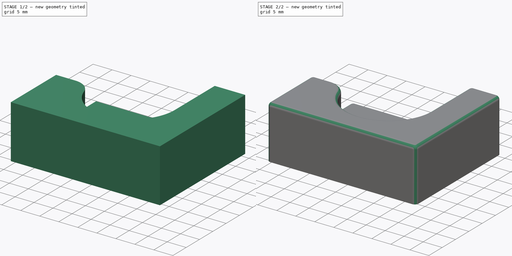
[diagram: build sequence overview — one tinted view per stage of 2, left to right]
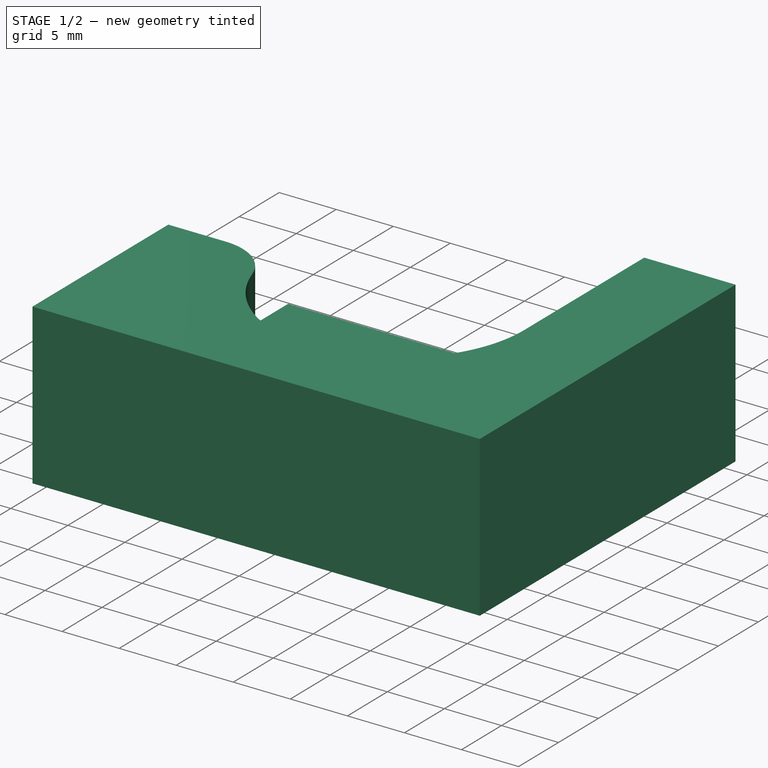
[diagram: stage 1 of 2 — iso view after this stage's code; geometry added in this stage tinted green]
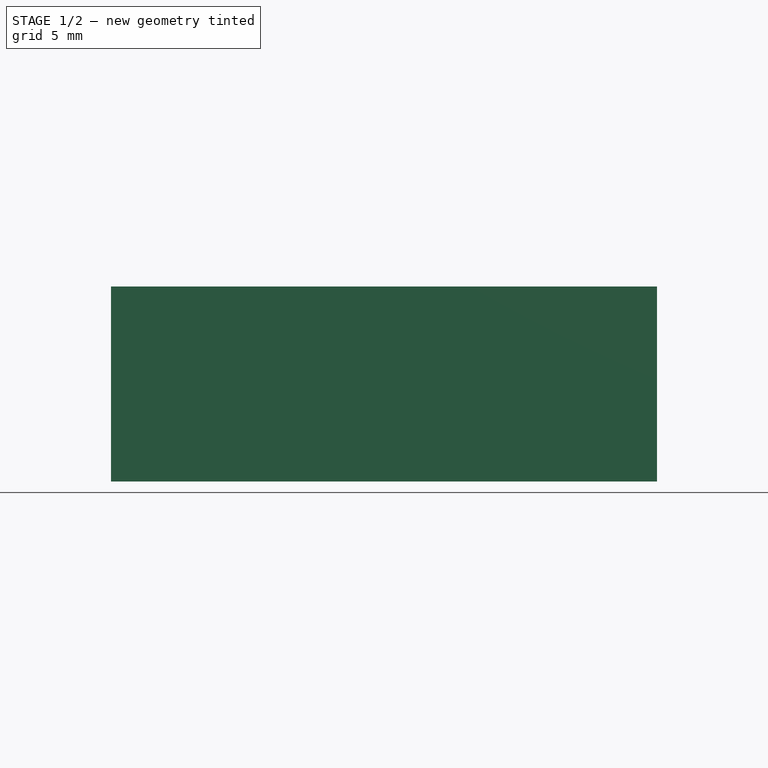
[diagram: stage 1 of 2 — front view after this stage's code; geometry added in this stage tinted green]
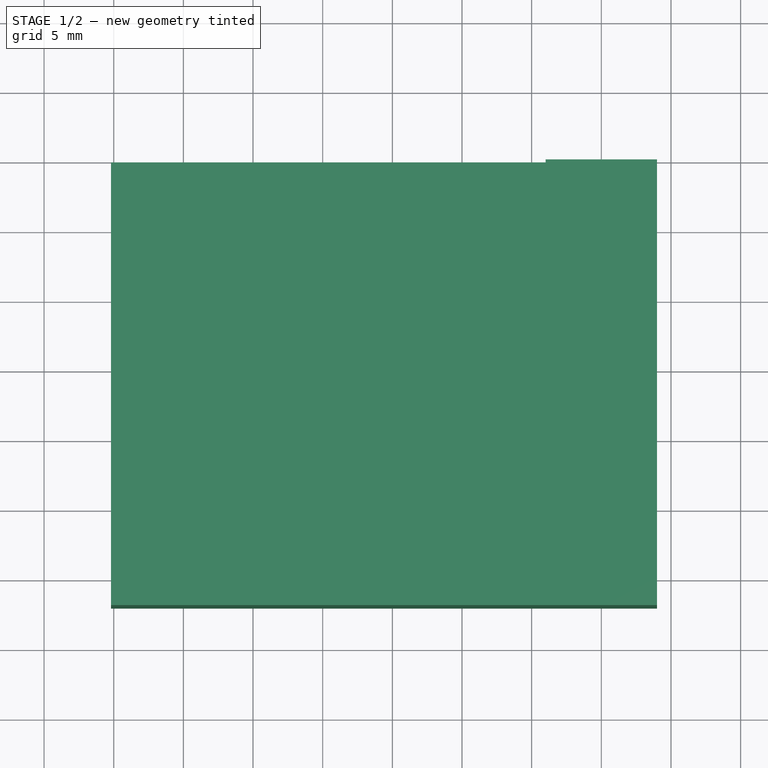
[diagram: stage 1 of 2 — top view after this stage's code; geometry added in this stage tinted green]
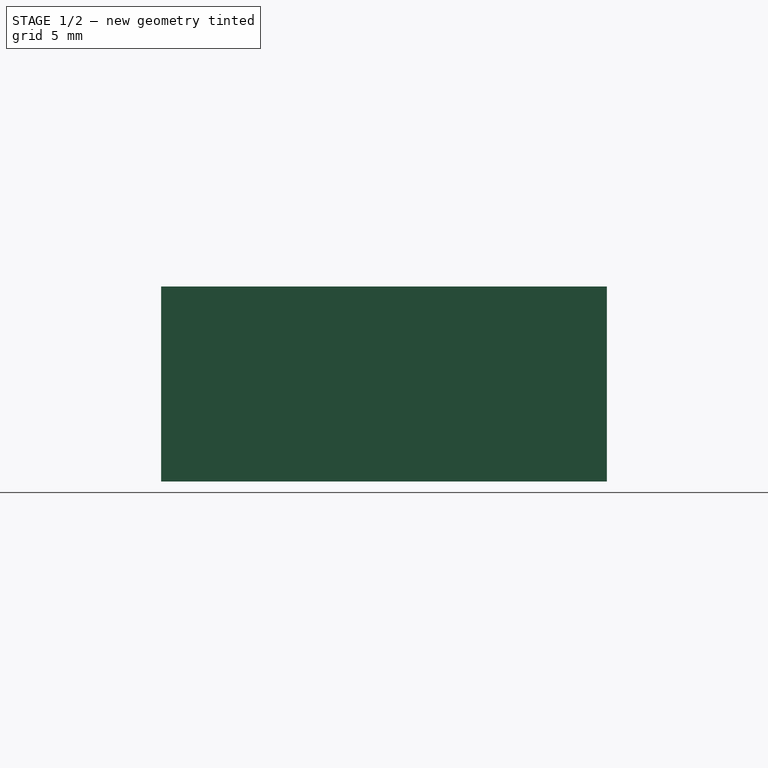
[diagram: stage 1 of 2 — right view after this stage's code; geometry added in this stage tinted green]
FCSTD DOCUMENT  (FreeCAD 0.18.3R)
Label: BabyDoorStop
License: All rights reserved
LicenseURL: http://en.wikipedia.org/wiki/All_rights_reserved
objects: Sketcher::SketchObject×3, PartDesign::Pad×2, PartDesign::Fillet×1, PartDesign::Body×1, App::Part×1
note: 9 computed .brp shape members not serialized (recipe doc carries the construction recipe); baked Part::Feature solids carry a one-line shape summary decoded from their .brp

FEATURE [Sketcher::SketchObject] Sketch
  MapMode = 5
  Support = -> [XY_Plane001]
  expr: Constraints[15] = (Constraints.Rm - 1mm) * 1.5
  expr: Constraints[3] = (Constraints.Rm - 1mm) / 2
  sketch-geometry (10):
    g0: ArcOfCircle CenterX=0 CenterY=0 CenterZ=0 NormalX=0 NormalY=0 NormalZ=1 AngleXU=0 Radius=11 StartAngle=3.45942 EndAngle=6.28319
    g1: ArcOfCircle CenterX=-15.1987 CenterY=-5 CenterZ=0 NormalX=0 NormalY=0 NormalZ=1 AngleXU=0 Radius=5 StartAngle=0.317824 EndAngle=1.5708
    g2: LineSegment StartX=11 StartY=0 StartZ=0 EndX=11 EndY=15 EndZ=0
    g3: LineSegment StartX=11 StartY=15 StartZ=0 EndX=19 EndY=15 EndZ=0
    g4: LineSegment StartX=19 StartY=15 StartZ=0 EndX=19 EndY=-17 EndZ=0
    g5: LineSegment StartX=19 StartY=-17 StartZ=0 EndX=-20.1987 EndY=-17 EndZ=0
    g6: LineSegment StartX=-20.1987 StartY=15 StartZ=0 EndX=11 EndY=15 EndZ=0
    g7: LineSegment StartX=-15.1987 StartY=0 StartZ=0 EndX=-20.1987 EndY=0 EndZ=0
    g8: LineSegment StartX=-20.1987 StartY=15 StartZ=0 EndX=-20.1987 EndY=0 EndZ=0
    g9: LineSegment StartX=-20.1987 StartY=0 StartZ=0 EndX=-20.1987 EndY=-17 EndZ=0
  constraints (27):
    c: Coincident(g0,g-1)
    c: PointOnObject(g0,g-1)
    c: Radius(g0) = 11  'Rm'
    c: Radius(g1) = 5
    c: Tangent(g0,g1) = 1.5708
    c: Tangent(g0,g2) = -1.5708
    c: Coincident(g2,g3)
    c: Horizontal(g3)
    c: Coincident(g3,g4)
    c: Vertical(g4)
    c: Coincident(g4,g5)
    c: Horizontal(g5)
    c: Coincident(g6,g2)
    c: Horizontal(g6)
    c: PointOnObject(g1,g-1)
    c: DistanceY(g2,g2) = 15
    c: Horizontal(g7)
    c: Coincident(g8,g6)
    c: Coincident(g8,g7)
    c: Vertical(g8)
    c: Coincident(g9,g7)
    c: Coincident(g9,g5)
    c: Vertical(g9)
    c: DistanceX(g3,g3) = 8
    c: Tangent(g1,g7) = -1.5708
    c: DistanceX(g7,g7) = 5
    c: DistanceY(g5,g7) = 17
FEATURE [Sketcher::SketchObject] Sketch001
  ExternalGeometry = -> [Sketch]
  MapMode = 5
  Support = -> [XY_Plane001]
  sketch-geometry (4):
    g0: LineSegment StartX=-20.1987 StartY=15 StartZ=0 EndX=19 EndY=15 EndZ=0
    g1: LineSegment StartX=19 StartY=15 StartZ=0 EndX=19 EndY=-17 EndZ=0
    g2: LineSegment StartX=19 StartY=-17 StartZ=0 EndX=-20.1987 EndY=-17 EndZ=0
    g3: LineSegment StartX=-20.1987 StartY=-17 StartZ=0 EndX=-20.1987 EndY=15 EndZ=0
  constraints (10):
    c: Coincident(g0,g1)
    c: Coincident(g1,g2)
    c: Coincident(g2,g3)
    c: Coincident(g3,g0)
    c: Horizontal(g0)
    c: Horizontal(g2)
    c: Vertical(g1)
    c: Vertical(g3)
    c: Coincident(g0,g-3)
    c: Coincident(g1,g-4)
FEATURE [PartDesign::Pad] Pad
  Length = 2
  Length2 = 100
  Profile = -> Sketch001
  Type = 0
FEATURE [Sketcher::SketchObject] Sketch002
  AttachmentOffset = pos=(0,0,2) rot=(0,0,1;0rad)
  ExternalGeometry = -> [Sketch]
  MapMode = 5
  Placement = pos=(0,0,2) rot=(0,0,1;0rad)
  Support = -> [XY_Plane001]
  expr: AttachmentOffset.Base.z = Sketch001.Placement.Base.z + Pad.Length
  sketch-geometry (8):
    g0: LineSegment StartX=-15.1987 StartY=0 StartZ=0 EndX=-20.1987 EndY=0 EndZ=0
    g1: LineSegment StartX=-20.1987 StartY=0 StartZ=0 EndX=-20.1987 EndY=-17 EndZ=0
    g2: LineSegment StartX=-20.1987 StartY=-17 StartZ=0 EndX=19 EndY=-17 EndZ=0
    g3: LineSegment StartX=19 StartY=-17 StartZ=0 EndX=19 EndY=15 EndZ=0
    g4: LineSegment StartX=19 StartY=15 StartZ=0 EndX=11 EndY=15 EndZ=0
    g5: LineSegment StartX=11 StartY=15 StartZ=0 EndX=11 EndY=-3.6e-15 EndZ=0
    g6: ArcOfCircle CenterX=-15.1987 CenterY=-5 CenterZ=0 NormalX=0 NormalY=0 NormalZ=1 AngleXU=0 Radius=5 StartAngle=0.317827 EndAngle=1.5708
    g7: ArcOfCircle CenterX=0 CenterY=0 CenterZ=0 NormalX=0 NormalY=0 NormalZ=1 AngleXU=0 Radius=11 StartAngle=3.45941 EndAngle=6.28319
  constraints (17):
    c: Coincident(g-7,g0)
    c: Coincident(g0,g-7)
    c: Coincident(g0,g1)
    c: Coincident(g1,g-3)
    c: Coincident(g1,g2)
    c: Coincident(g2,g-3)
    c: Coincident(g2,g3)
    c: Coincident(g3,g-6)
    c: Coincident(g3,g4)
    c: Coincident(g4,g-6)
    c: Coincident(g4,g5)
    c: Coincident(g5,g-5)
    c: Coincident(g6,g-4)
    c: Coincident(g6,g0)
    c: Coincident(g7,g-1)
    c: Coincident(g7,g5)
    c: Coincident(g7,g6)
FEATURE [PartDesign::Pad] Pad001
  BaseFeature = -> Pad
  Length = 12
  Length2 = 100
  Profile = -> Sketch002
  Refine = true
  Type = 0
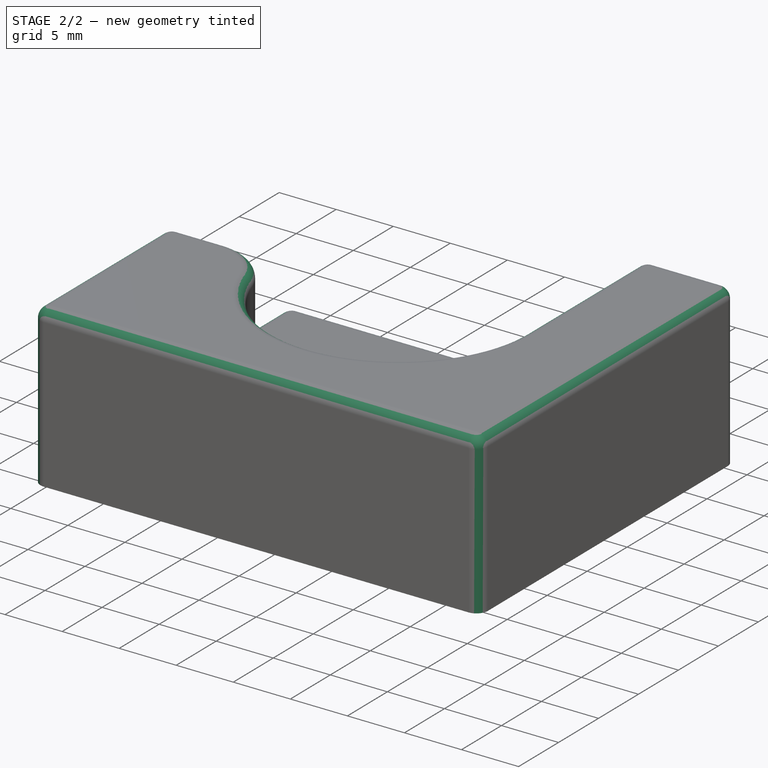
[diagram: stage 2 of 2 — iso view after this stage's code; geometry added in this stage tinted green]
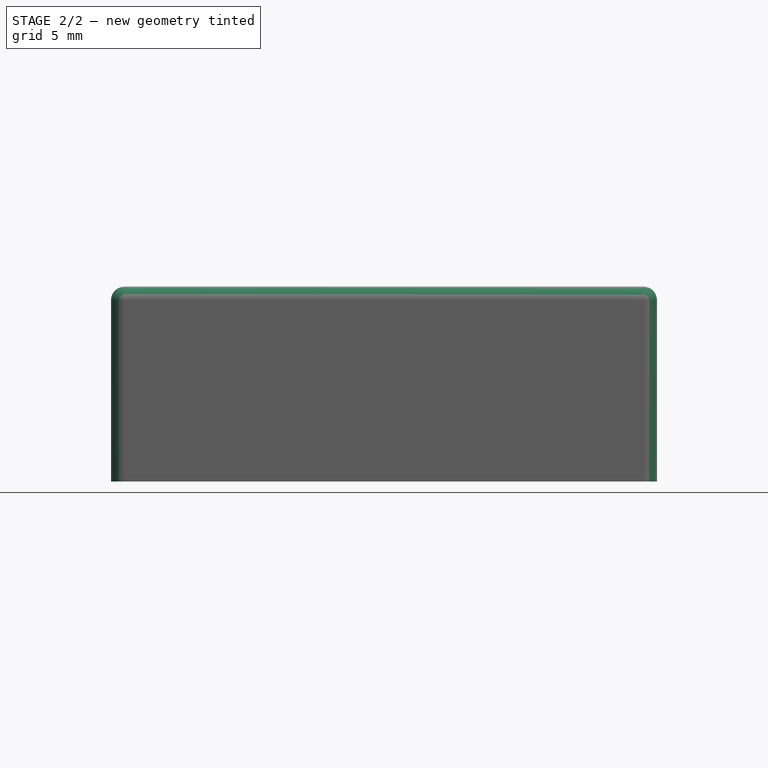
[diagram: stage 2 of 2 — front view after this stage's code; geometry added in this stage tinted green]
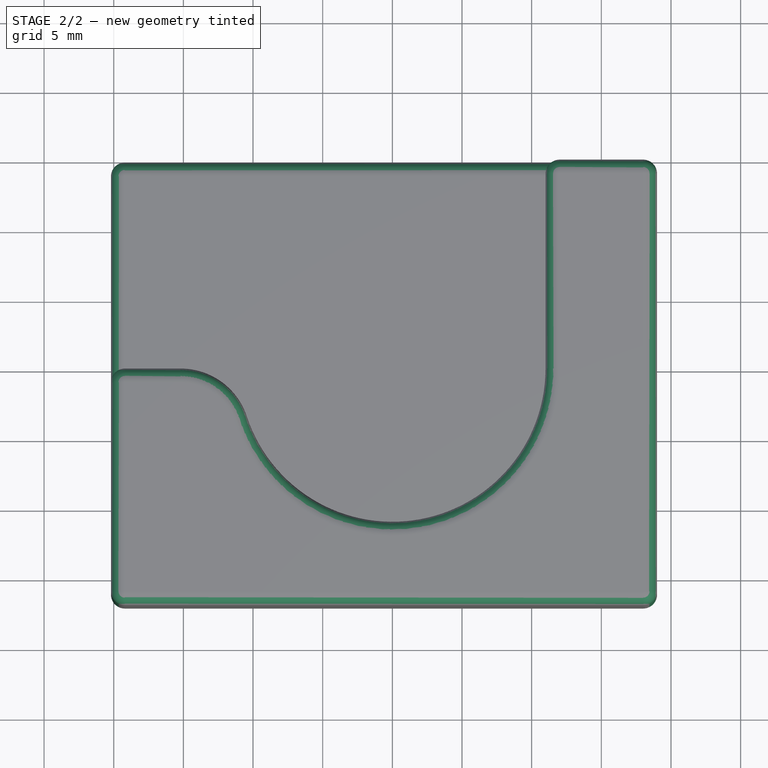
[diagram: stage 2 of 2 — top view after this stage's code; geometry added in this stage tinted green]
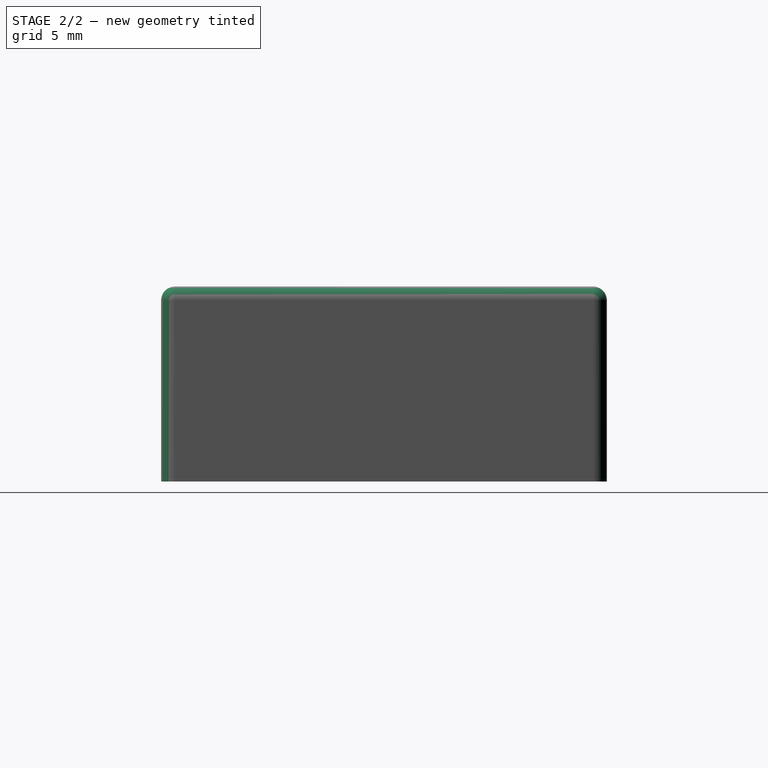
[diagram: stage 2 of 2 — right view after this stage's code; geometry added in this stage tinted green]
FEATURE [PartDesign::Fillet] Fillet
  Base = -> Pad001 [Edge20,Edge21,Edge14,Edge8,Edge26,Edge27,Edge13,Edge6,Edge1,Edge19,Edge18,Edge17,Edge16]
  BaseFeature = -> Pad001
  Radius = 1
FEATURE [PartDesign::Body] Body
  Group = -> [Sketch,Sketch001,Pad,Sketch002,Pad001,Fillet]
  Origin = -> Origin001
  Tip = -> Fillet
FEATURE [App::Part] Part
  Group = -> [Body]
  Origin = -> Origin
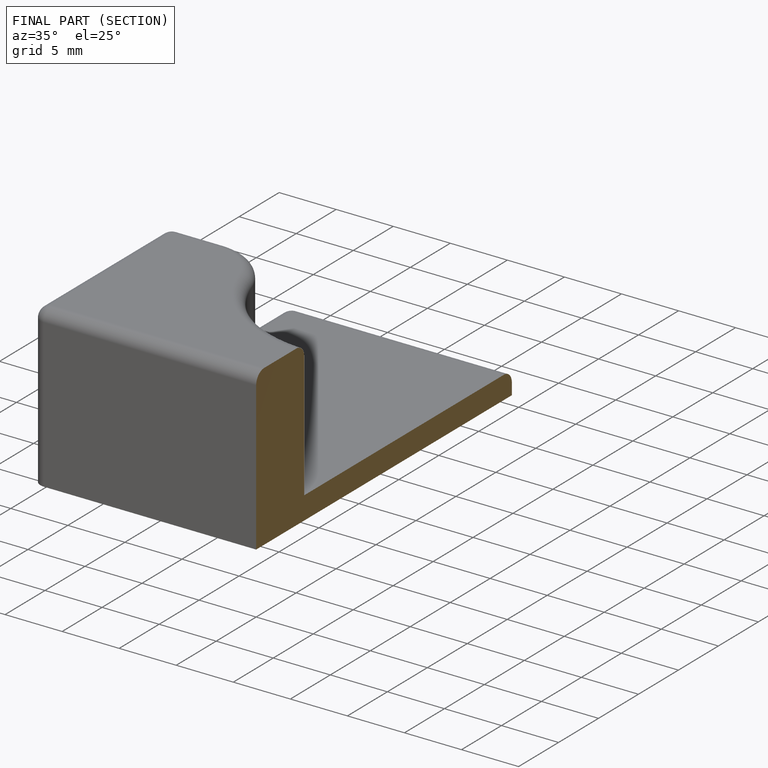
[diagram: finished part — half-section view (interior)]
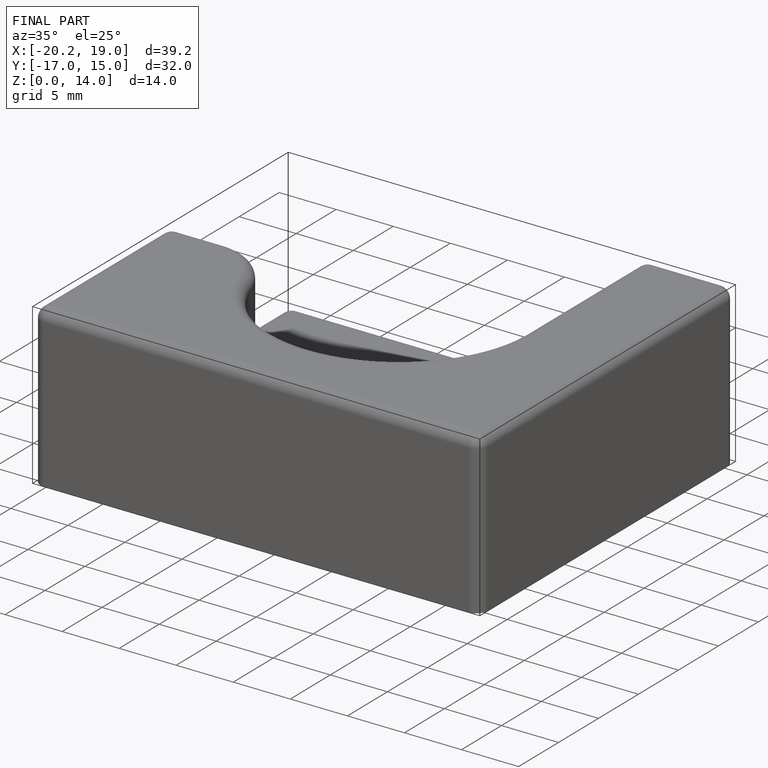
[diagram: finished part — iso view with bounding-box wireframe]
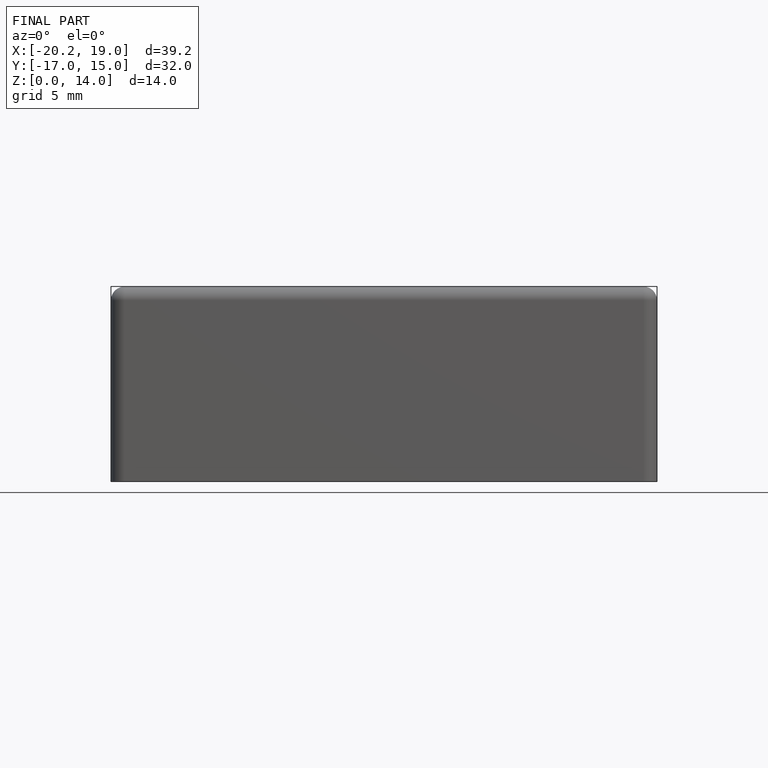
[diagram: finished part — front view with bounding-box wireframe]
